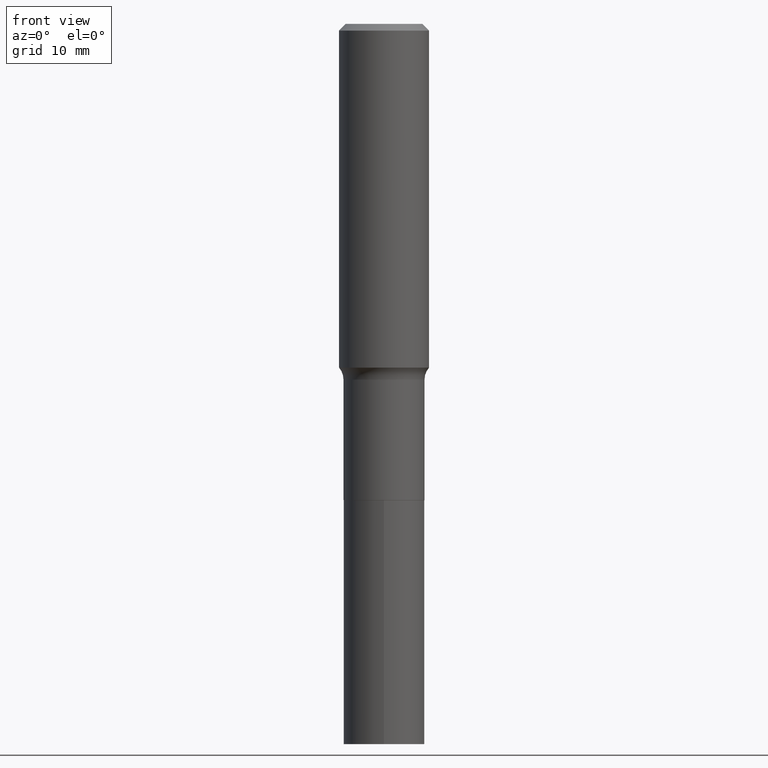
[diagram: clean part render]
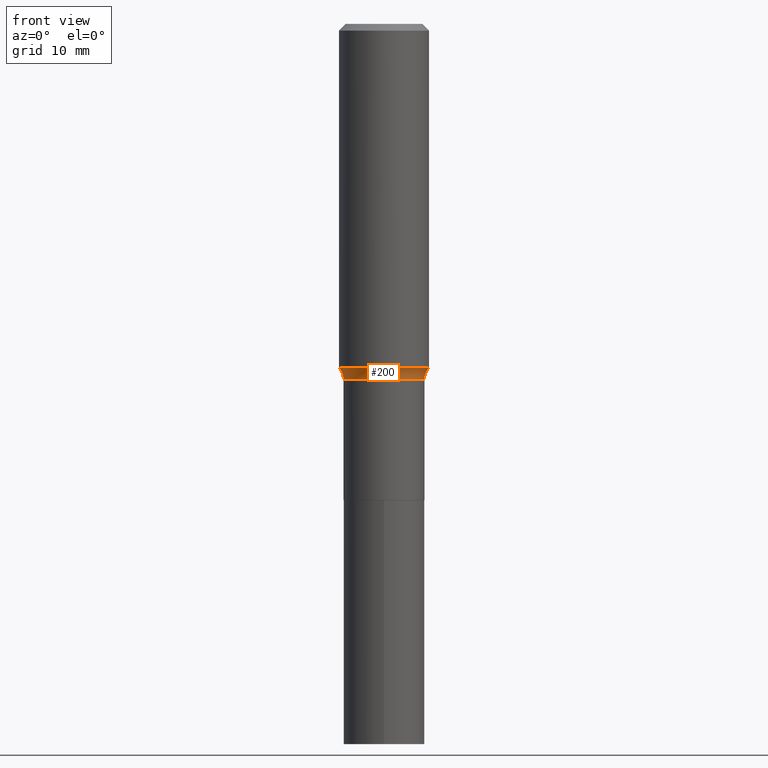
[diagram: same view with one face highlighted and labeled with its STEP entity id]
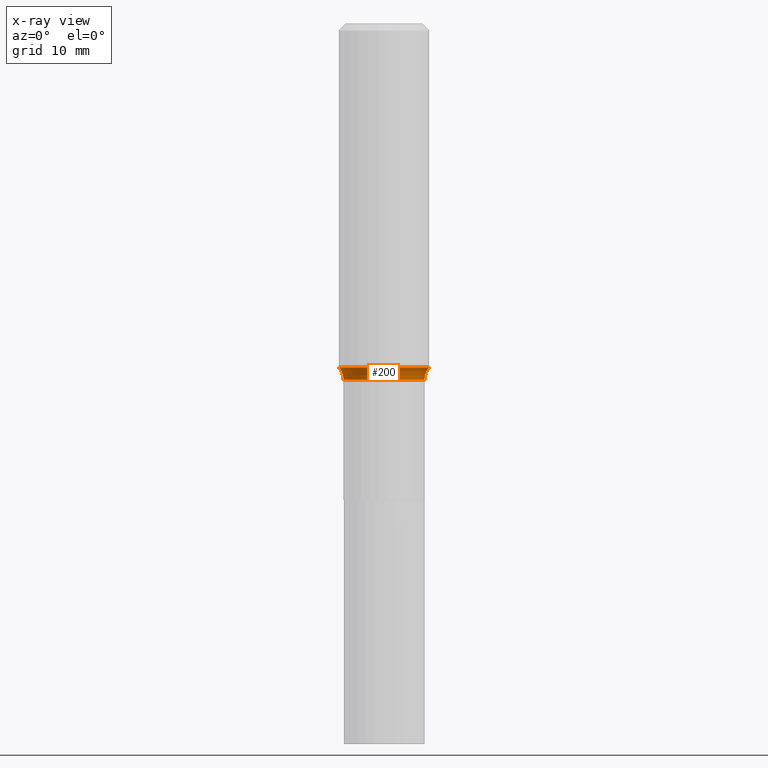
[diagram: x-ray of the same camera — body ghosted, the highlighted face saturated]
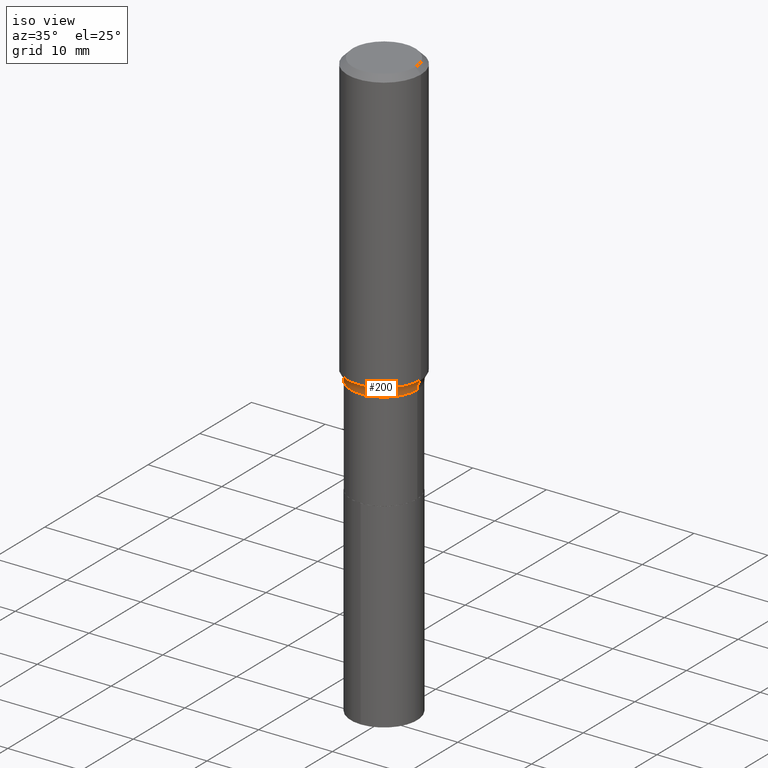
[diagram: same view with one face highlighted and labeled with its STEP entity id]
A machine part, front view. The second image highlights one B-rep face of the part: STEP entity #200.
The next image is the same camera in x-ray: the body ghosted, the highlighted face saturated — about 0% of this face is hidden behind the body in this view.
A second angle (iso view) of the same face is appended — the face is thin or edge-on in the first view.
In plain terms, the highlighted toroidal blend (fillet) surface has major radius 6.5316 mm and minor (blend) radius 2.032 mm.
Its self-contained STEP definition (entity closure, byte-faithful):
#14 = ORIENTED_EDGE ( 'NONE', *, *, #394, .T. ) ;
#42 = DIRECTION ( 'NONE',  ( -2.445468806185136597E-29, 3.491481338843145583E-15, 1.000000000000000000 ) ) ;
#43 = CARTESIAN_POINT ( 'NONE',  ( -0.1968500000000001915, -3.848738541785168331E-15, -1.502927098234926984 ) ) ;
#54 = ORIENTED_EDGE ( 'NONE', *, *, #126, .F. ) ;
#64 = DIRECTION ( 'NONE',  ( -2.445468806185136597E-29, 3.491481338843145583E-15, 1.000000000000000000 ) ) ;
#72 = CARTESIAN_POINT ( 'NONE',  ( 0.1771499999999999464, -6.668031060922634566E-15, -1.555500000000000105 ) ) ;
#75 = CIRCLE ( 'NONE', #351, 0.1968500000000001915 ) ;
#83 = DIRECTION ( 'NONE',  ( -2.445468806185136597E-29, 3.491481338843145583E-15, 1.000000000000000000 ) ) ;
#117 = CIRCLE ( 'NONE', #262, 0.08000000000000002942 ) ;
#122 = VERTEX_POINT ( 'NONE', #465 ) ;
#126 = EDGE_CURVE ( 'NONE', #212, #122, #75, .T. ) ;
#128 = CARTESIAN_POINT ( 'NONE',  ( 3.803926728020980075E-29, -5.430999222570513750E-15, -1.555500000000000105 ) ) ;
#149 = DIRECTION ( 'NONE',  ( -1.000000000000000000, 7.105427357601001859E-15, 0.000000000000000000 ) ) ;
#173 = VERTEX_POINT ( 'NONE', #72 ) ;
#174 = DIRECTION ( 'NONE',  ( 1.000000000000000000, -6.982962677686269077E-15, 0.000000000000000000 ) ) ;
#185 = DIRECTION ( 'NONE',  ( 7.105427357601001859E-15, 1.000000000000000000, -3.491481338843145583E-15 ) ) ;
#193 = DIRECTION ( 'NONE',  ( 1.000000000000000000, -6.982962677686266711E-15, 0.000000000000000000 ) ) ;
#200 = ADVANCED_FACE ( 'NONE', ( #225 ), #303, .F. ) ;
#201 = DIRECTION ( 'NONE',  ( -6.982962677686266711E-15, -1.000000000000000000, 3.491481338843145583E-15 ) ) ;
#212 = VERTEX_POINT ( 'NONE', #43 ) ;
#225 = FACE_OUTER_BOUND ( 'NONE', #239, .T. ) ;
#237 = CARTESIAN_POINT ( 'NONE',  ( 3.803926728020980075E-29, -5.430999222570513750E-15, -1.555500000000000105 ) ) ;
#239 = EDGE_LOOP ( 'NONE', ( #54, #14, #245, #254 ) ) ;
#245 = ORIENTED_EDGE ( 'NONE', *, *, #302, .T. ) ;
#254 = ORIENTED_EDGE ( 'NONE', *, *, #286, .F. ) ;
#260 = CIRCLE ( 'NONE', #279, 0.1771499999999999464 ) ;
#262 = AXIS2_PLACEMENT_3D ( 'NONE', #287, #185, #149 ) ;
#279 = AXIS2_PLACEMENT_3D ( 'NONE', #128, #42, #409 ) ;
#286 = EDGE_CURVE ( 'NONE', #122, #173, #361, .T. ) ;
#287 = CARTESIAN_POINT ( 'NONE',  ( -0.2571499999999999342, -3.603838577563416196E-15, -1.555500000000000105 ) ) ;
#302 = EDGE_CURVE ( 'NONE', #314, #173, #260, .T. ) ;
#303 = TOROIDAL_SURFACE ( 'NONE', #395, 0.2571499999999999342, 0.08000000000000000167 ) ;
#314 = VERTEX_POINT ( 'NONE', #315 ) ;
#315 = CARTESIAN_POINT ( 'NONE',  ( -0.1771499999999999464, -5.091579802688896916E-15, -1.555500000000000105 ) ) ;
#348 = DIRECTION ( 'NONE',  ( 1.000000000000000000, -6.982962677686267499E-15, 4.883557194083112901E-29 ) ) ;
#351 = AXIS2_PLACEMENT_3D ( 'NONE', #430, #64, #193 ) ;
#361 = CIRCLE ( 'NONE', #464, 0.08000000000000002942 ) ;
#380 = CARTESIAN_POINT ( 'NONE',  ( 0.2571499999999999342, -7.226668075137537008E-15, -1.555500000000000105 ) ) ;
#394 = EDGE_CURVE ( 'NONE', #212, #314, #117, .T. ) ;
#395 = AXIS2_PLACEMENT_3D ( 'NONE', #237, #83, #348 ) ;
#409 = DIRECTION ( 'NONE',  ( 1.000000000000000000, -6.982962677686263555E-15, 0.000000000000000000 ) ) ;
#430 = CARTESIAN_POINT ( 'NONE',  ( 3.675361336703858371E-29, -5.247441917128926908E-15, -1.502927098234926984 ) ) ;
#464 = AXIS2_PLACEMENT_3D ( 'NONE', #380, #201, #174 ) ;
#465 = CARTESIAN_POINT ( 'NONE',  ( 0.1968500000000001915, -6.622038120231470094E-15, -1.502927098234926984 ) ) ;